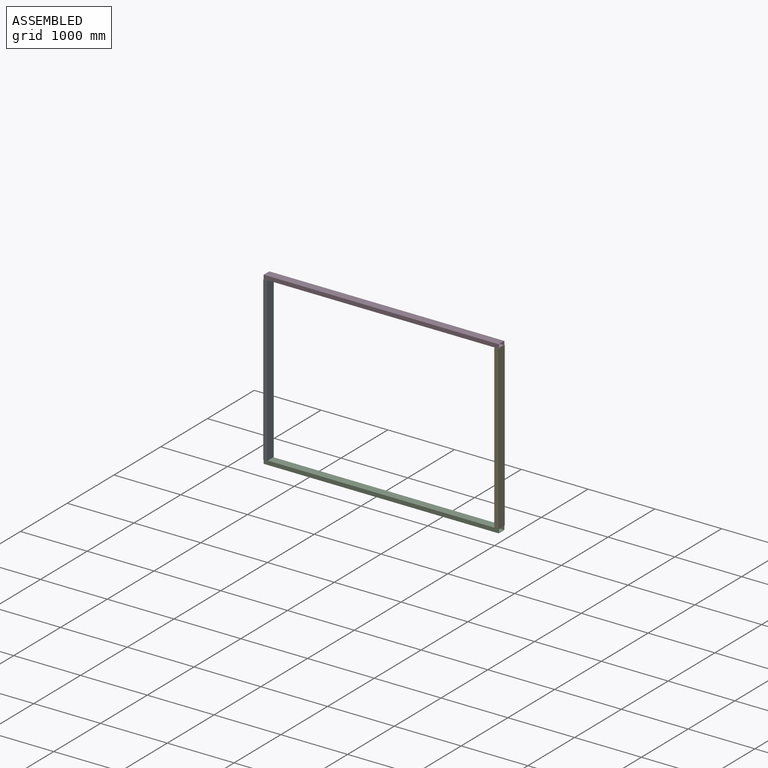
[diagram: assembled view]
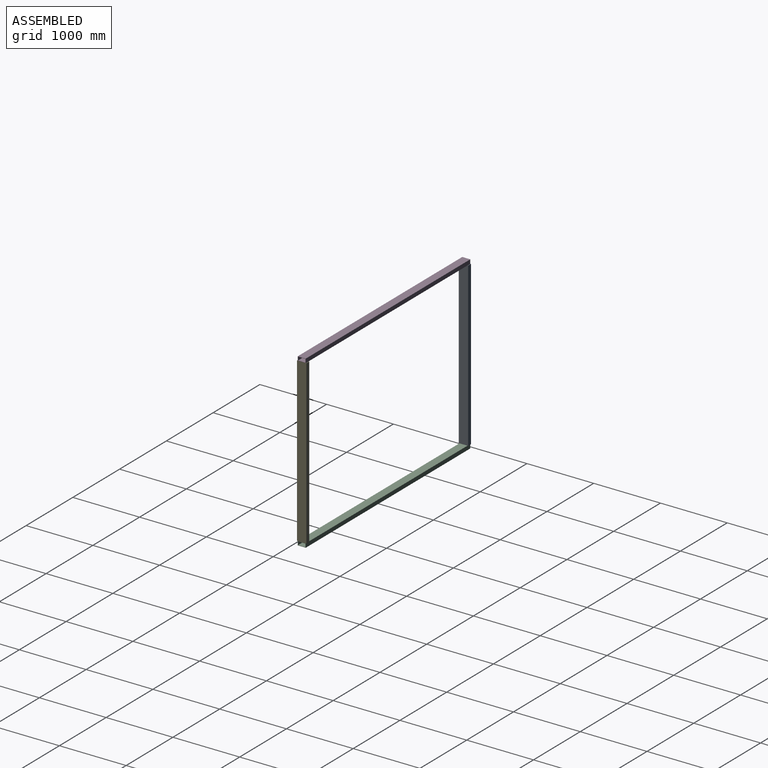
[diagram: assembled view, second angle]
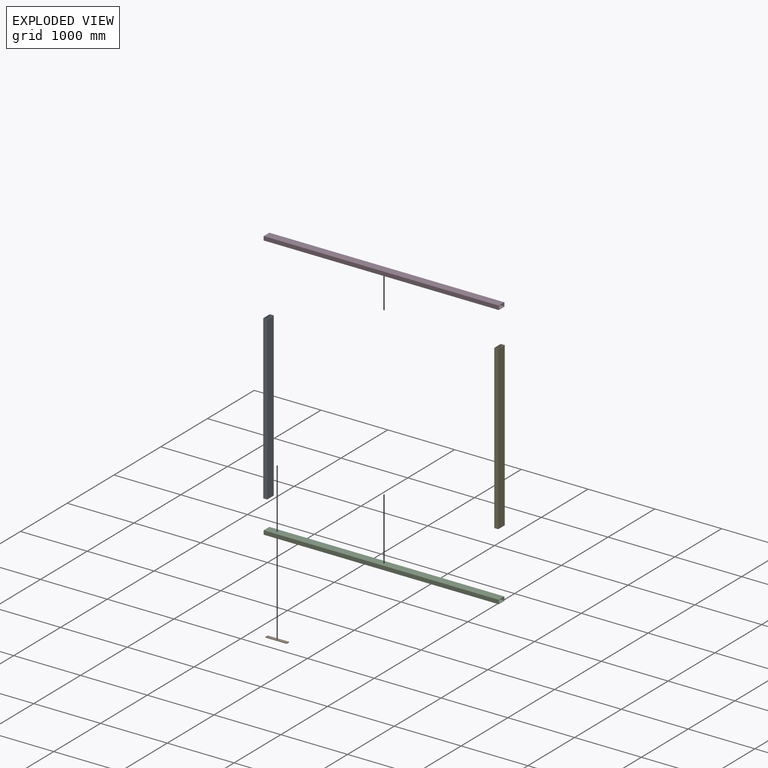
[diagram: exploded view]
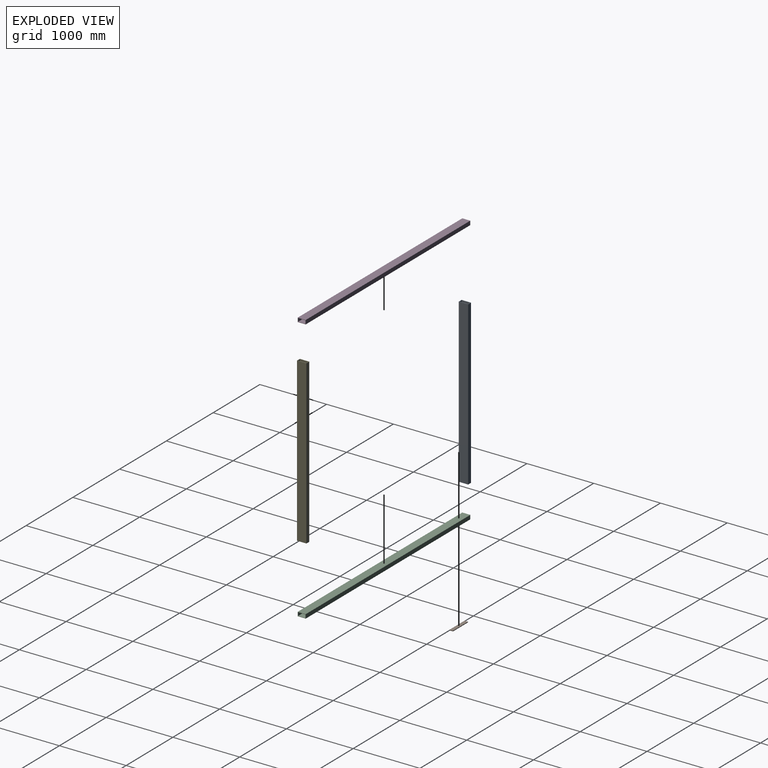
[diagram: exploded view, second angle]
ASSEMBLY  parts=5 mates=4
PART A: 10 faces, bbox 140x60x2440 mm
  f0: plane 2440x140mm, normal (0,1,0), area 341600mm2, adj f1,f7,f8,f9
  f1: plane 2440x60mm, normal (-1,0,0), area 146400mm2, adj f0,f2,f8,f9
  f2: plane 2440x140mm, normal (0,-1,0), area 341600mm2, adj f1,f7,f8,f9
  f3: plane 2440x50mm, normal (1,0,0), area 122000mm2, adj f4,f6,f8,f9
  f4: plane 2440x130mm, normal (0,-1,0), area 317200mm2, adj f3,f5,f8,f9
  f5: plane 2440x50mm, normal (-1,0,0), area 122000mm2, adj f4,f6,f8,f9
  f6: plane 2440x130mm, normal (0,1,0), area 317200mm2, adj f3,f5,f8,f9
  f7: plane 2440x60mm, normal (1,0,0), area 146400mm2, adj f0,f2,f8,f9
  f8: plane 140x60mm, normal (0,0,1), area 1900mm2, adj f0,f1,f2,f3,f4,f5,f6,f7
  f9: plane 140x60mm, normal (0,0,-1), area 1900mm2, adj f0,f1,f2,f3,f4,f5,f6,f7
PART B: 6 faces, bbox 320x50x10 mm
  f0: plane 320x10mm, normal (0,1,0), area 3200mm2, adj f1,f3,f4,f5
  f1: plane 50x10mm, normal (-1,0,0), area 500mm2, adj f0,f2,f4,f5
  f2: plane 320x10mm, normal (0,-1,0), area 3200mm2, adj f1,f3,f4,f5
  f3: plane 50x10mm, normal (1,0,0), area 500mm2, adj f0,f2,f4,f5
  f4: plane 320x50mm, normal (0,0,1), area 16000mm2, adj f0,f1,f2,f3
  f5: plane 320x50mm, normal (0,0,-1), area 16000mm2, adj f0,f1,f2,f3
PART C: 10 faces, bbox 120x60x3520 mm
  f0: plane 3520x120mm, normal (0,1,0), area 422400mm2, adj f1,f7,f8,f9
  f1: plane 3520x60mm, normal (-1,0,0), area 211200mm2, adj f0,f2,f8,f9
  f2: plane 3520x120mm, normal (0,-1,0), area 422400mm2, adj f1,f7,f8,f9
  f3: plane 3520x50mm, normal (1,0,0), area 176000mm2, adj f4,f6,f8,f9
  f4: plane 3520x110mm, normal (0,-1,0), area 387200mm2, adj f3,f5,f8,f9
  f5: plane 3520x50mm, normal (-1,0,0), area 176000mm2, adj f4,f6,f8,f9
  f6: plane 3520x110mm, normal (0,1,0), area 387200mm2, adj f3,f5,f8,f9
  f7: plane 3520x60mm, normal (1,0,0), area 211200mm2, adj f0,f2,f8,f9
  f8: plane 120x60mm, normal (0,0,1), area 1700mm2, adj f0,f1,f2,f3,f4,f5,f6,f7
  f9: plane 120x60mm, normal (0,0,-1), area 1700mm2, adj f0,f1,f2,f3,f4,f5,f6,f7
PART D: same geometry as C
PART E: same geometry as A
PLACE A rot(axis=(0.71,-0.71,0),180deg) t=(-691.42,1179.68,3930.71)mm
PLACE B t=(-691.42,1134.68,1420.71)mm
PLACE C rot(axis=(0.58,-0.58,-0.58),120deg) t=(2828.58,1169.68,1490.71)mm
PLACE D rot(axis=(-0.58,0.58,-0.58),120deg) t=(-691.42,1169.68,3930.71)mm
PLACE E rot(axis=(0,0,-1),90deg) t=(2828.58,1179.68,1490.71)mm
MATE fastened A.f8 <-> C.f0  axis (0,0,-1) through (-691.42,1109.68,1490.71)mm
MATE fastened B.f4 <-> C.f2  axis (0,0,1) through (-691.42,1109.68,1430.71)mm
MATE fastened A.f9 <-> D.f0  axis (0,0,1) through (-691.42,1109.68,3930.71)mm
MATE fastened E.f8 <-> D.f0  axis (0,0,1) through (2828.58,1109.68,3930.71)mm
